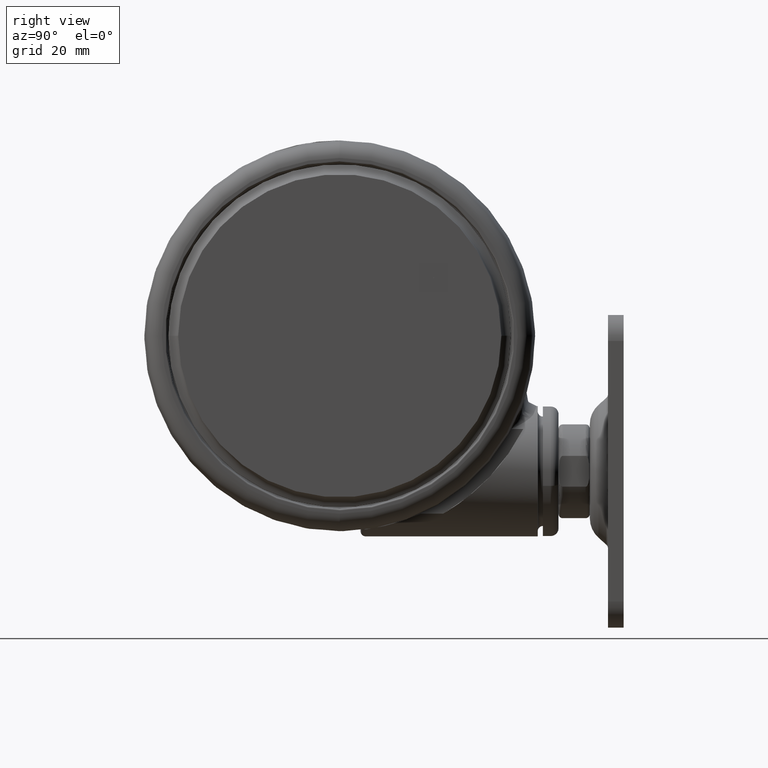
[diagram: clean part render]
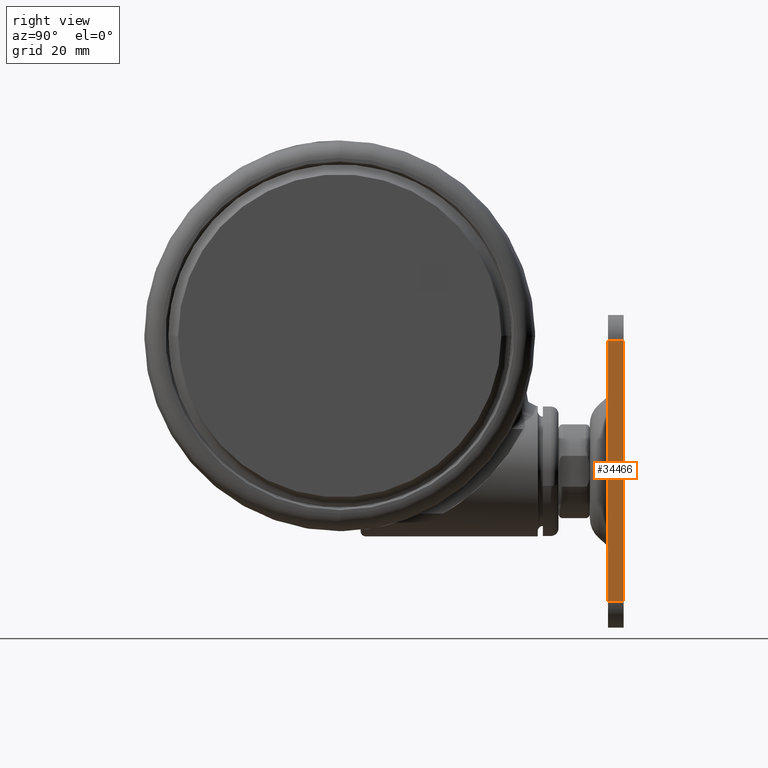
[diagram: same view with one face highlighted and labeled with its STEP entity id]
A machine part, right view. The second image highlights one B-rep face of the part: STEP entity #34466.
In plain terms, the highlighted planar face has unit normal (-1, -0, -0).
Its self-contained STEP definition (entity closure, byte-faithful):
#1172 = LINE ( 'NONE', #41565, #13223 ) ;
#6225 = AXIS2_PLACEMENT_3D ( 'NONE', #22000, #13055, #44961 ) ;
#6232 = CARTESIAN_POINT ( 'NONE',  ( -51.50000000000032000, 55.99999999999984400, 1.150000000000005200 ) ) ;
#9621 = LINE ( 'NONE', #16418, #56613 ) ;
#9668 = DIRECTION ( 'NONE',  ( 1.000000000000000000, 6.766639261487335700E-015, 7.888609052210118100E-031 ) ) ;
#10351 = EDGE_CURVE ( 'NONE', #31163, #24897, #12567, .T. ) ;
#10530 = CARTESIAN_POINT ( 'NONE',  ( -54.50000000000027700, 50.99999999999982200, 1.150000000000005200 ) ) ;
#11340 = EDGE_CURVE ( 'NONE', #56796, #11458, #9621, .T. ) ;
#11458 = VERTEX_POINT ( 'NONE', #35968 ) ;
#12567 = LINE ( 'NONE', #6232, #47510 ) ;
#13055 = DIRECTION ( 'NONE',  ( 1.420644706535697900E-030, 9.612990247868607300E-045, -1.000000000000000000 ) ) ;
#13223 = VECTOR ( 'NONE', #9668, 1000.000000000000000 ) ;
#14923 = LINE ( 'NONE', #29194, #37743 ) ;
#16418 = CARTESIAN_POINT ( 'NONE',  ( -54.50000000000031300, 55.99999999999982200, 1.150000000000005200 ) ) ;
#16606 = DIRECTION ( 'NONE',  ( 6.766639261487335700E-015, -1.000000000000000000, 0.0000000000000000000 ) ) ;
#17285 = EDGE_CURVE ( 'NONE', #11458, #24897, #1172, .T. ) ;
#21846 = CARTESIAN_POINT ( 'NONE',  ( -51.50000000000028400, 50.99999999999984400, 1.150000000000005200 ) ) ;
#22000 = CARTESIAN_POINT ( 'NONE',  ( -51.50000000000032000, 55.99999999999984400, 1.150000000000005200 ) ) ;
#23233 = EDGE_LOOP ( 'NONE', ( #42170, #53802, #29041, #24324 ) ) ;
#24324 = ORIENTED_EDGE ( 'NONE', *, *, #31471, .T. ) ;
#24510 = FACE_OUTER_BOUND ( 'NONE', #23233, .T. ) ;
#24897 = VERTEX_POINT ( 'NONE', #29882 ) ;
#26389 = PLANE ( 'NONE',  #6225 ) ;
#29041 = ORIENTED_EDGE ( 'NONE', *, *, #10351, .F. ) ;
#29194 = CARTESIAN_POINT ( 'NONE',  ( -51.50000000000028400, 50.99999999999984400, 1.150000000000005200 ) ) ;
#29882 = CARTESIAN_POINT ( 'NONE',  ( -51.49999999999994300, 0.9999999999998412400, 1.150000000000005200 ) ) ;
#31163 = VERTEX_POINT ( 'NONE', #21846 ) ;
#31471 = EDGE_CURVE ( 'NONE', #31163, #56796, #14923, .T. ) ;
#34466 = ADVANCED_FACE ( 'NONE', ( #24510 ), #26389, .F. ) ;
#35968 = CARTESIAN_POINT ( 'NONE',  ( -54.49999999999994300, 0.9999999999998204800, 1.150000000000005200 ) ) ;
#37743 = VECTOR ( 'NONE', #42980, 1000.000000000000000 ) ;
#41565 = CARTESIAN_POINT ( 'NONE',  ( -51.49999999999994300, 0.9999999999998412400, 1.150000000000005200 ) ) ;
#42170 = ORIENTED_EDGE ( 'NONE', *, *, #11340, .T. ) ;
#42686 = DIRECTION ( 'NONE',  ( 6.766639261487335700E-015, -1.000000000000000000, 0.0000000000000000000 ) ) ;
#42980 = DIRECTION ( 'NONE',  ( -1.000000000000000000, -6.766639261487335700E-015, -7.888609052210118100E-031 ) ) ;
#44961 = DIRECTION ( 'NONE',  ( -6.766639261487335700E-015, 1.000000000000000000, 0.0000000000000000000 ) ) ;
#47510 = VECTOR ( 'NONE', #42686, 1000.000000000000000 ) ;
#53802 = ORIENTED_EDGE ( 'NONE', *, *, #17285, .T. ) ;
#56613 = VECTOR ( 'NONE', #16606, 1000.000000000000000 ) ;
#56796 = VERTEX_POINT ( 'NONE', #10530 ) ;